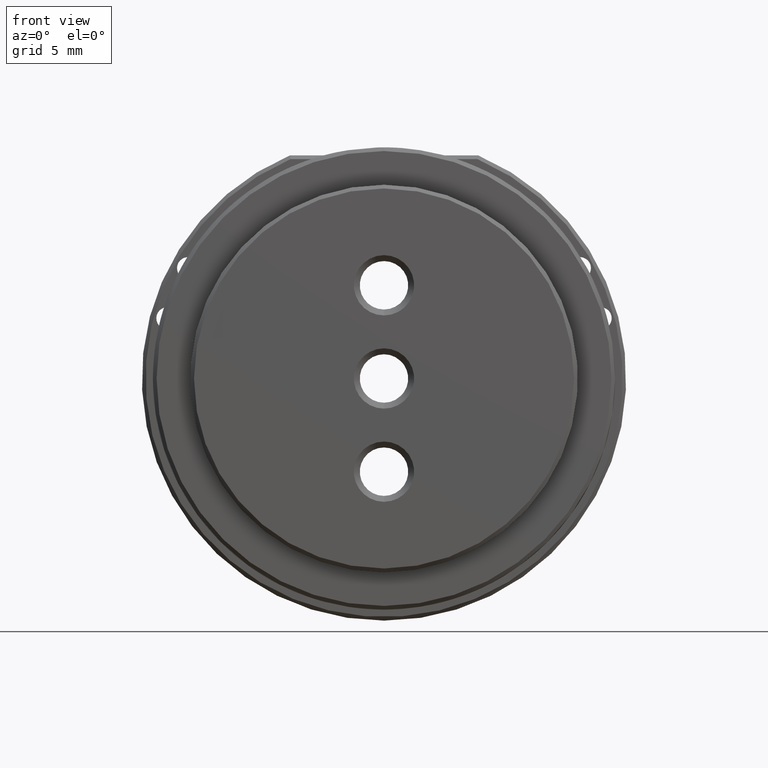
[diagram: clean part render]
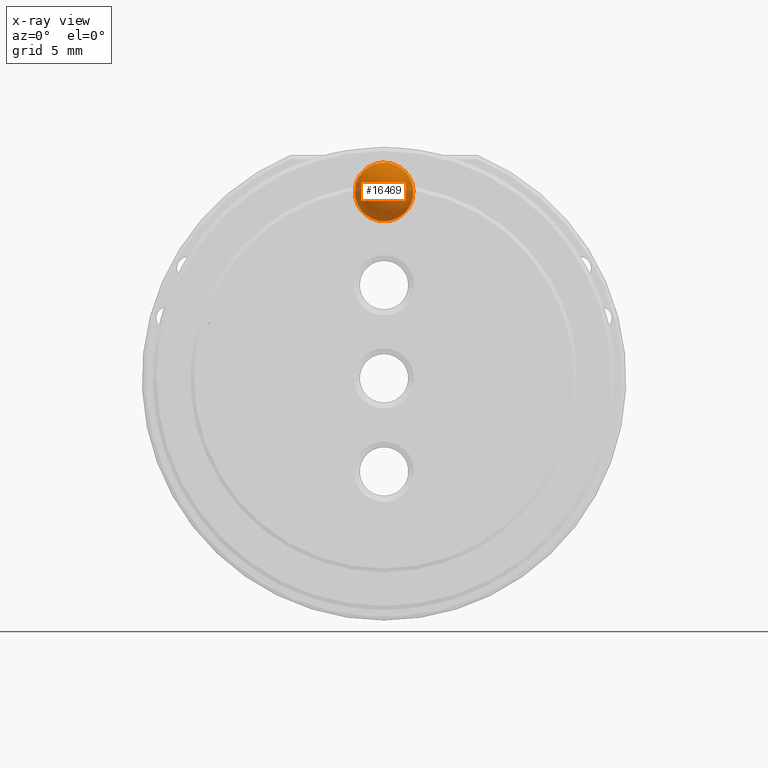
[diagram: x-ray — body ghosted, one internal face saturated and labeled with its STEP entity id]
A machine part, front view, then the same camera in x-ray: the body is ghosted and one INTERNAL B-rep face — a face not visible from any outside direction — is saturated and labeled: STEP entity #16469.
In plain terms, the highlighted spherical surface has radius 2 mm.
Its self-contained STEP definition (entity closure, byte-faithful):
#3416 = DIRECTION ( 'NONE',  ( 0.000000000000000000, 0.000000000000000000, -1.000000000000000000 ) ) ;
#6469 = DIRECTION ( 'NONE',  ( 0.9984265528499155495, 0.000000000000000000, 0.05607511537424222925 ) ) ;
#8005 = CARTESIAN_POINT ( 'NONE',  ( 0.1121502307488678185, -9.724735272551622955, 10.70314689430000854 ) ) ;
#16469 = ADVANCED_FACE ( 'NONE', ( #29336 ), #52545, .T. ) ;
#17921 = DIRECTION ( 'NONE',  ( 0.000000000000000000, 1.000000000000000000, -0.000000000000000000 ) ) ;
#18817 = AXIS2_PLACEMENT_3D ( 'NONE', #48788, #64612, #3416 ) ;
#20467 = AXIS2_PLACEMENT_3D ( 'NONE', #69905, #25674, #53683 ) ;
#21854 = EDGE_CURVE ( 'NONE', #44567, #33585, #41209, .T. ) ;
#23795 = CARTESIAN_POINT ( 'NONE',  ( 3.778444571111979923E-13, -9.724735272551622955, 12.69999999999993712 ) ) ;
#25101 = CIRCLE ( 'NONE', #20467, 2.000000000000000000 ) ;
#25674 = DIRECTION ( 'NONE',  ( 1.222719882131433731E-16, 1.000000000000000000, 6.867221055488759277E-18 ) ) ;
#29336 = FACE_OUTER_BOUND ( 'NONE', #51245, .T. ) ;
#33585 = VERTEX_POINT ( 'NONE', #71526 ) ;
#41209 = CIRCLE ( 'NONE', #18817, 2.000000000000000000 ) ;
#44567 = VERTEX_POINT ( 'NONE', #8005 ) ;
#48788 = CARTESIAN_POINT ( 'NONE',  ( 3.778444571111979923E-13, -9.724735272551622955, 12.69999999999993712 ) ) ;
#51245 = EDGE_LOOP ( 'NONE', ( #52874, #66064 ) ) ;
#52545 = SPHERICAL_SURFACE ( 'NONE', #60804, 2.000000000000000000 ) ;
#52874 = ORIENTED_EDGE ( 'NONE', *, *, #61686, .F. ) ;
#53683 = DIRECTION ( 'NONE',  ( -1.000000000000000000, 0.000000000000000000, 0.000000000000000000 ) ) ;
#60804 = AXIS2_PLACEMENT_3D ( 'NONE', #23795, #17921, #6469 ) ;
#61686 = EDGE_CURVE ( 'NONE', #44567, #33585, #25101, .T. ) ;
#64612 = DIRECTION ( 'NONE',  ( 0.000000000000000000, -1.000000000000000000, 0.000000000000000000 ) ) ;
#66064 = ORIENTED_EDGE ( 'NONE', *, *, #21854, .T. ) ;
#69905 = CARTESIAN_POINT ( 'NONE',  ( 3.778444571111979923E-13, -9.724735272551622955, 12.69999999999993712 ) ) ;
#71526 = CARTESIAN_POINT ( 'NONE',  ( -0.1121502307481118954, -9.724735272551622955, 14.69685310569986569 ) ) ;